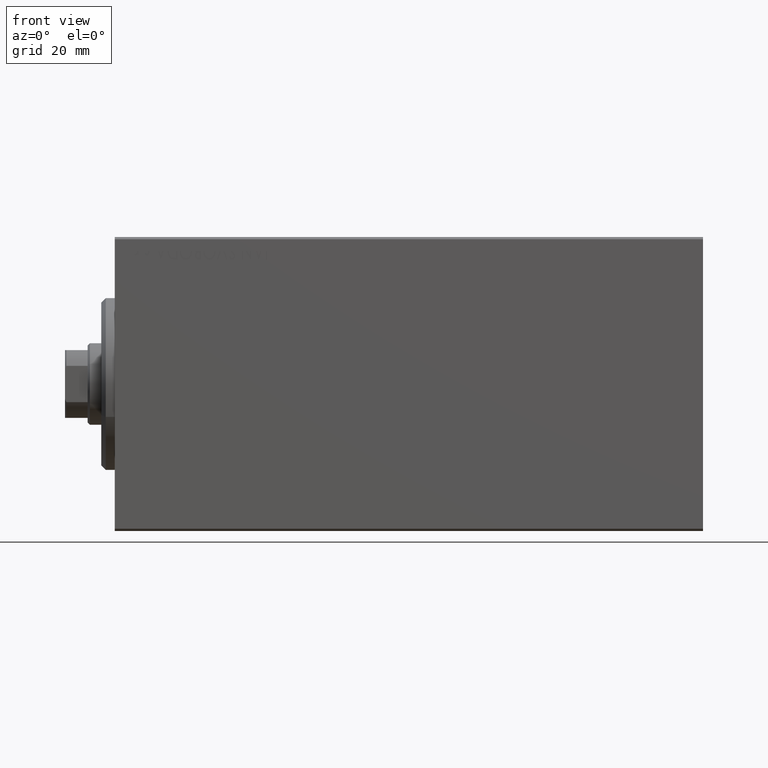
[diagram: clean part render]
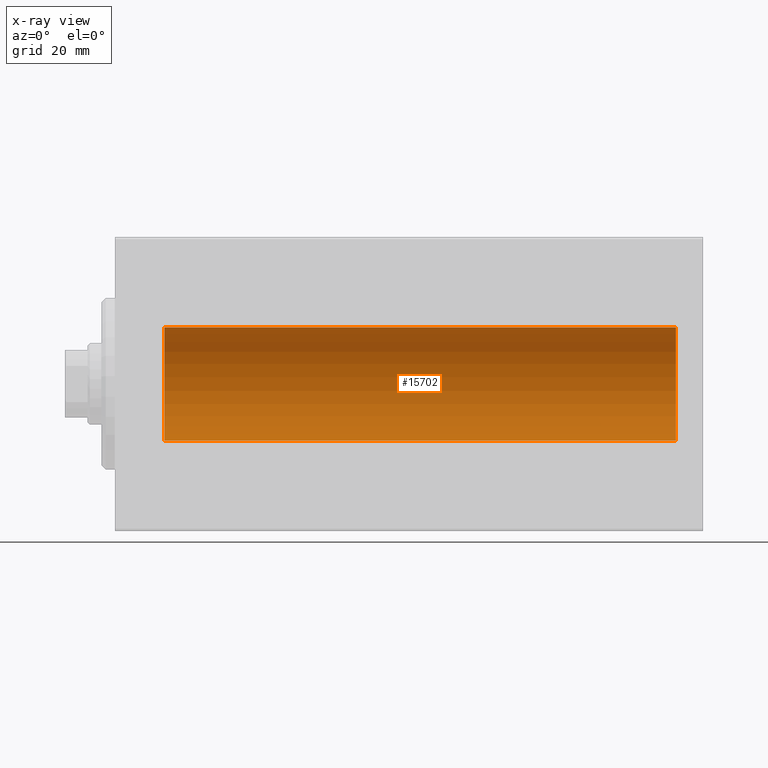
[diagram: x-ray — body ghosted, one internal face saturated and labeled with its STEP entity id]
A machine part, front view, then the same camera in x-ray: the body is ghosted and one INTERNAL B-rep face — a face not visible from any outside direction — is saturated and labeled: STEP entity #15702.
In plain terms, the highlighted cylindrical surface (partial cylindrical patch) has radius 12.5 mm, axis along (-1, -0, -0).
Its self-contained STEP definition (entity closure, byte-faithful):
#177 = DIRECTION ( 'NONE',  ( -1.000000000000000000, -0.000000000000000000, -0.000000000000000000 ) ) ;
#1085 = VECTOR ( 'NONE', #39407, 1000.000000000000000 ) ;
#2977 = FACE_OUTER_BOUND ( 'NONE', #9402, .T. ) ;
#3192 = CYLINDRICAL_SURFACE ( 'NONE', #25312, 12.50000000000000000 ) ;
#3508 = LINE ( 'NONE', #34279, #23042 ) ;
#4982 = EDGE_CURVE ( 'NONE', #21100, #21753, #37128, .T. ) ;
#5698 = EDGE_CURVE ( 'NONE', #40327, #21100, #3508, .T. ) ;
#7854 = CIRCLE ( 'NONE', #31163, 12.50000000000000000 ) ;
#9402 = EDGE_LOOP ( 'NONE', ( #12143, #11148, #23653, #43607 ) ) ;
#9728 = CARTESIAN_POINT ( 'NONE',  ( 124.0000000000000000, 0.000000000000000000, 0.000000000000000000 ) ) ;
#10430 = EDGE_CURVE ( 'NONE', #41609, #21753, #40261, .T. ) ;
#11148 = ORIENTED_EDGE ( 'NONE', *, *, #30254, .F. ) ;
#12143 = ORIENTED_EDGE ( 'NONE', *, *, #10430, .F. ) ;
#12870 = CARTESIAN_POINT ( 'NONE',  ( 10.99999999999999645, 0.000000000000000000, 0.000000000000000000 ) ) ;
#15702 = ADVANCED_FACE ( 'NONE', ( #2977 ), #3192, .F. ) ;
#16838 = DIRECTION ( 'NONE',  ( -1.000000000000000000, 0.000000000000000000, 0.000000000000000000 ) ) ;
#17424 = CARTESIAN_POINT ( 'NONE',  ( 124.0000000000000000, 0.000000000000000000, 12.50000000000000000 ) ) ;
#19691 = DIRECTION ( 'NONE',  ( 0.000000000000000000, 0.000000000000000000, 1.000000000000000000 ) ) ;
#19729 = DIRECTION ( 'NONE',  ( 0.000000000000000000, 0.000000000000000000, 1.000000000000000000 ) ) ;
#21100 = VERTEX_POINT ( 'NONE', #40144 ) ;
#21753 = VERTEX_POINT ( 'NONE', #37317 ) ;
#23042 = VECTOR ( 'NONE', #177, 1000.000000000000000 ) ;
#23568 = DIRECTION ( 'NONE',  ( -1.000000000000000000, -0.000000000000000000, -0.000000000000000000 ) ) ;
#23653 = ORIENTED_EDGE ( 'NONE', *, *, #5698, .T. ) ;
#23704 = AXIS2_PLACEMENT_3D ( 'NONE', #12870, #16838, #19729 ) ;
#24004 = CARTESIAN_POINT ( 'NONE',  ( 124.0000000000000000, 0.000000000000000000, 0.000000000000000000 ) ) ;
#25312 = AXIS2_PLACEMENT_3D ( 'NONE', #24004, #23568, #40609 ) ;
#26983 = DIRECTION ( 'NONE',  ( -1.000000000000000000, 0.000000000000000000, 0.000000000000000000 ) ) ;
#30254 = EDGE_CURVE ( 'NONE', #40327, #41609, #7854, .T. ) ;
#31163 = AXIS2_PLACEMENT_3D ( 'NONE', #9728, #26983, #19691 ) ;
#32754 = CARTESIAN_POINT ( 'NONE',  ( 124.0000000000000000, 1.530808498934191521E-15, -12.50000000000000000 ) ) ;
#34279 = CARTESIAN_POINT ( 'NONE',  ( 124.0000000000000000, 0.000000000000000000, 12.50000000000000000 ) ) ;
#37128 = CIRCLE ( 'NONE', #23704, 12.50000000000000000 ) ;
#37317 = CARTESIAN_POINT ( 'NONE',  ( 10.99999999999999645, 1.530808498934191521E-15, -12.50000000000000000 ) ) ;
#39250 = CARTESIAN_POINT ( 'NONE',  ( 124.0000000000000000, 1.530808498934191521E-15, -12.50000000000000000 ) ) ;
#39407 = DIRECTION ( 'NONE',  ( -1.000000000000000000, -0.000000000000000000, -0.000000000000000000 ) ) ;
#40144 = CARTESIAN_POINT ( 'NONE',  ( 10.99999999999999645, 0.000000000000000000, 12.50000000000000000 ) ) ;
#40261 = LINE ( 'NONE', #32754, #1085 ) ;
#40327 = VERTEX_POINT ( 'NONE', #17424 ) ;
#40609 = DIRECTION ( 'NONE',  ( 0.000000000000000000, 0.000000000000000000, 1.000000000000000000 ) ) ;
#41609 = VERTEX_POINT ( 'NONE', #39250 ) ;
#43607 = ORIENTED_EDGE ( 'NONE', *, *, #4982, .T. ) ;